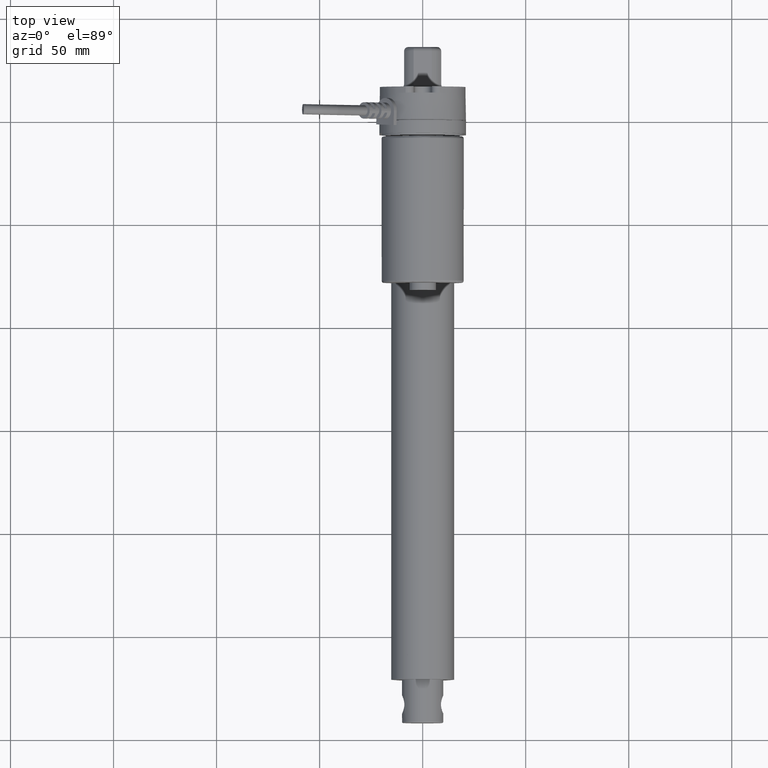
[diagram: clean part render]
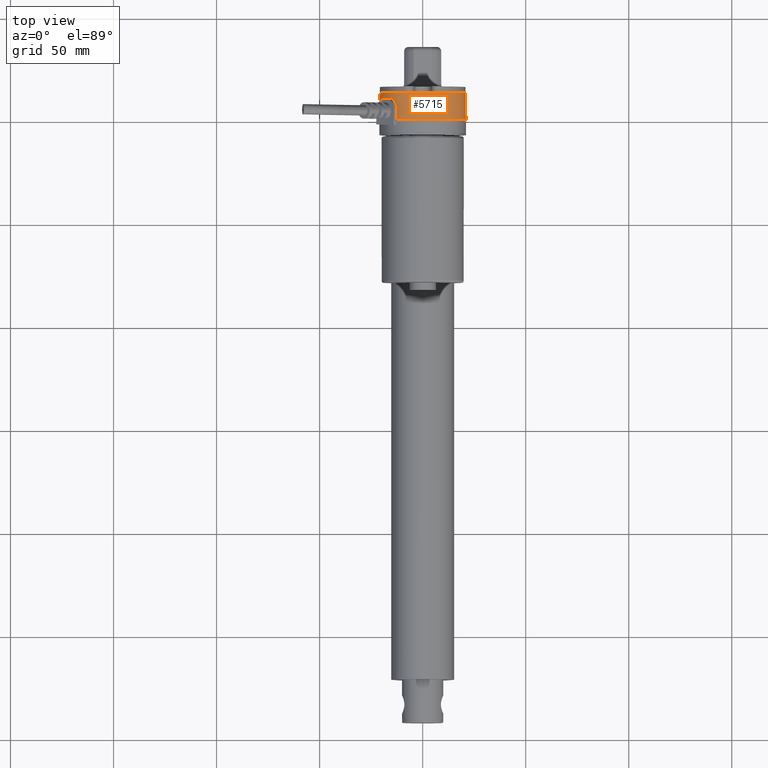
[diagram: same view with one face highlighted and labeled with its STEP entity id]
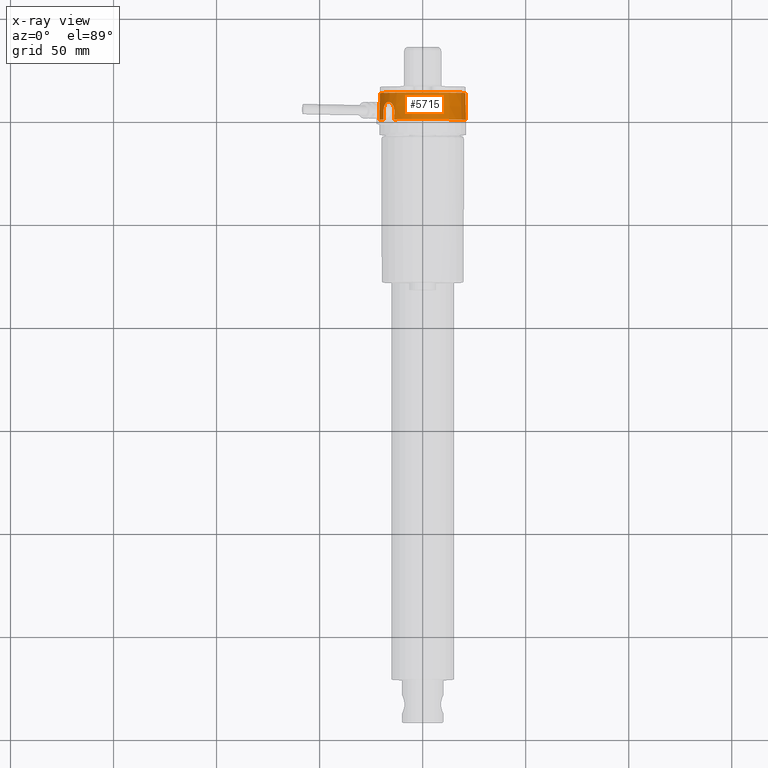
[diagram: x-ray of the same camera — body ghosted, the highlighted face saturated]
A machine part, top view. The second image highlights one B-rep face of the part: STEP entity #5715.
The next image is the same camera in x-ray: the body ghosted, the highlighted face saturated — about 0% of this face is hidden behind the body in this view.
In plain terms, the highlighted conical surface has half-angle 1 deg.
Its self-contained STEP definition (entity closure, byte-faithful):
#92=B_SPLINE_CURVE_WITH_KNOTS('',3,(#10637,#10638,#10639,#10640,#10641,
#10642,#10643),.UNSPECIFIED.,.F.,.F.,(4,1,1,1,4),(4.17485811756389E-16,
0.00334295395862807,0.00668590791725572,0.0100288618758834,0.013371815834511),
 .UNSPECIFIED.);
#332=CONICAL_SURFACE('',#6361,20.7730841559313,0.0174532925199803);
#670=LINE('',#10662,#1127);
#688=LINE('',#10713,#1145);
#689=LINE('',#10715,#1146);
#703=LINE('',#10751,#1160);
#1127=VECTOR('',#7743,1000.);
#1145=VECTOR('',#7807,1000.);
#1146=VECTOR('',#7810,1000.);
#1160=VECTOR('',#7848,1000.);
#2541=ORIENTED_EDGE('',*,*,#3541,.F.);
#2542=ORIENTED_EDGE('',*,*,#3542,.T.);
#2543=ORIENTED_EDGE('',*,*,#3496,.F.);
#2544=ORIENTED_EDGE('',*,*,#3490,.F.);
#2545=ORIENTED_EDGE('',*,*,#3522,.F.);
#2546=ORIENTED_EDGE('',*,*,#3543,.T.);
#2547=ORIENTED_EDGE('',*,*,#3523,.F.);
#2548=ORIENTED_EDGE('',*,*,#3488,.F.);
#2549=ORIENTED_EDGE('',*,*,#3487,.F.);
#2550=ORIENTED_EDGE('',*,*,#3493,.F.);
#3487=EDGE_CURVE('',#4061,#3967,#4459,.T.);
#3488=EDGE_CURVE('',#3967,#4098,#4460,.T.);
#3490=EDGE_CURVE('',#4107,#4108,#92,.T.);
#3493=EDGE_CURVE('',#4105,#4061,#4461,.T.);
#3496=EDGE_CURVE('',#4108,#4110,#670,.T.);
#3522=EDGE_CURVE('',#4121,#4107,#688,.T.);
#3523=EDGE_CURVE('',#4098,#4122,#689,.T.);
#3541=EDGE_CURVE('',#4131,#4105,#703,.T.);
#3542=EDGE_CURVE('',#4131,#4110,#4474,.T.);
#3543=EDGE_CURVE('',#4121,#4122,#4475,.T.);
#3967=VERTEX_POINT('',#10126);
#4061=VERTEX_POINT('',#10470);
#4098=VERTEX_POINT('',#10605);
#4105=VERTEX_POINT('',#10627);
#4107=VERTEX_POINT('',#10636);
#4108=VERTEX_POINT('',#10644);
#4110=VERTEX_POINT('',#10659);
#4121=VERTEX_POINT('',#10712);
#4122=VERTEX_POINT('',#10716);
#4131=VERTEX_POINT('',#10750);
#4459=CIRCLE('',#6318,20.7730841559313);
#4460=CIRCLE('',#6320,20.7730841559313);
#4461=CIRCLE('',#6323,20.7730841559313);
#4474=CIRCLE('',#6362,20.9999999999986);
#4475=CIRCLE('',#6363,20.9999999999986);
#4835=EDGE_LOOP('',(#2541,#2542,#2543,#2544,#2545,#2546,#2547,#2548,#2549,
#2550));
#5234=FACE_BOUND('',#4835,.T.);
#5715=ADVANCED_FACE('',(#5234),#332,.T.);
#6318=AXIS2_PLACEMENT_3D('',#10630,#7725,#7726);
#6320=AXIS2_PLACEMENT_3D('',#10632,#7729,#7730);
#6323=AXIS2_PLACEMENT_3D('',#10656,#7737,#7738);
#6361=AXIS2_PLACEMENT_3D('',#10752,#7849,#7850);
#6362=AXIS2_PLACEMENT_3D('',#10753,#7851,#7852);
#6363=AXIS2_PLACEMENT_3D('',#10754,#7853,#7854);
#7725=DIRECTION('',(0.,1.,-4.1754114674433E-17));
#7726=DIRECTION('',(1.77635683940025E-15,-8.35082293488659E-17,-1.));
#7729=DIRECTION('',(0.,1.,0.));
#7730=DIRECTION('',(-1.,-3.4238374033035E-15,1.67016458697732E-16));
#7737=DIRECTION('',(0.,1.,0.));
#7738=DIRECTION('',(-1.,-2.83927979786144E-15,0.));
#7743=DIRECTION('',(-0.0131801040081429,-0.999828734111178,0.0129918168080187));
#7807=DIRECTION('',(0.0124621492156239,0.999846885912671,-0.0122841185138143));
#7810=DIRECTION('',(0.0174524064373205,-0.999847695156391,0.));
#7848=DIRECTION('',(0.0174524064373205,0.999847695156391,0.));
#7849=DIRECTION('',(0.,-1.,4.1754114674433E-17));
#7850=DIRECTION('',(0.,-8.35082293488659E-17,-1.));
#7851=DIRECTION('',(0.,1.,-4.1754114674433E-17));
#7852=DIRECTION('',(0.,-4.17541146744329E-17,-1.));
#7853=DIRECTION('',(0.,1.,-4.1754114674433E-17));
#7854=DIRECTION('',(8.88178419700125E-16,-4.1754114674433E-17,-1.));
#10126=CARTESIAN_POINT('',(8.35688113620562,13.,39.017979993277));
#10470=CARTESIAN_POINT('',(-8.35688113620605,13.,39.0179799932768));
#10605=CARTESIAN_POINT('',(20.773084155931,13.,20.));
#10627=CARTESIAN_POINT('',(-20.773084155931,12.9999999999999,20.));
#10630=CARTESIAN_POINT('',(0.,12.9999999999999,20.));
#10632=CARTESIAN_POINT('',(0.,12.9999999999999,20.));
#10636=CARTESIAN_POINT('',(-13.7933011406558,4.25000000000174,35.7364105762126));
#10637=CARTESIAN_POINT('',(-13.7933011406616,4.25000000000002,35.7364105762076));
#10638=CARTESIAN_POINT('',(-13.7792138474937,5.38022266662684,35.7225245300848));
#10639=CARTESIAN_POINT('',(-14.4760846913513,7.5988429062393,35.1001801932793));
#10640=CARTESIAN_POINT('',(-16.7380572440255,8.95733536872493,32.6038303306041));
#10641=CARTESIAN_POINT('',(-18.505553664477,7.57108712488299,29.7552452471167));
#10642=CARTESIAN_POINT('',(-18.9325366985439,5.38091228998866,28.8669673137991));
#10643=CARTESIAN_POINT('',(-18.947448084764,4.25000000000022,28.8816656802161));
#10644=CARTESIAN_POINT('',(-18.9474480847646,4.25000000000011,28.8816656802147));
#10656=CARTESIAN_POINT('',(0.,12.9999999999999,20.));
#10659=CARTESIAN_POINT('',(-19.0034731219777,-6.27748208201643E-15,28.9368903597512));
#10662=CARTESIAN_POINT('',(-18.9754606033715,2.12499999999997,28.9092780199823));
#10712=CARTESIAN_POINT('',(-13.8462733856211,3.33347732590367E-14,35.7886260748231));
#10713=CARTESIAN_POINT('',(-13.8197872631395,2.12500000000003,35.762518325517));
#10715=CARTESIAN_POINT('',(20.886542077965,6.5,20.));
#10716=CARTESIAN_POINT('',(20.9999999999993,0.,20.));
#10750=CARTESIAN_POINT('',(-20.9999999999993,-1.38777878078145E-14,20.));
#10751=CARTESIAN_POINT('',(-20.886542077965,6.5,20.));
#10752=CARTESIAN_POINT('',(0.,12.9999999999998,20.));
#10753=CARTESIAN_POINT('',(0.,-1.38777878078145E-14,20.));
#10754=CARTESIAN_POINT('',(0.,0.,20.));